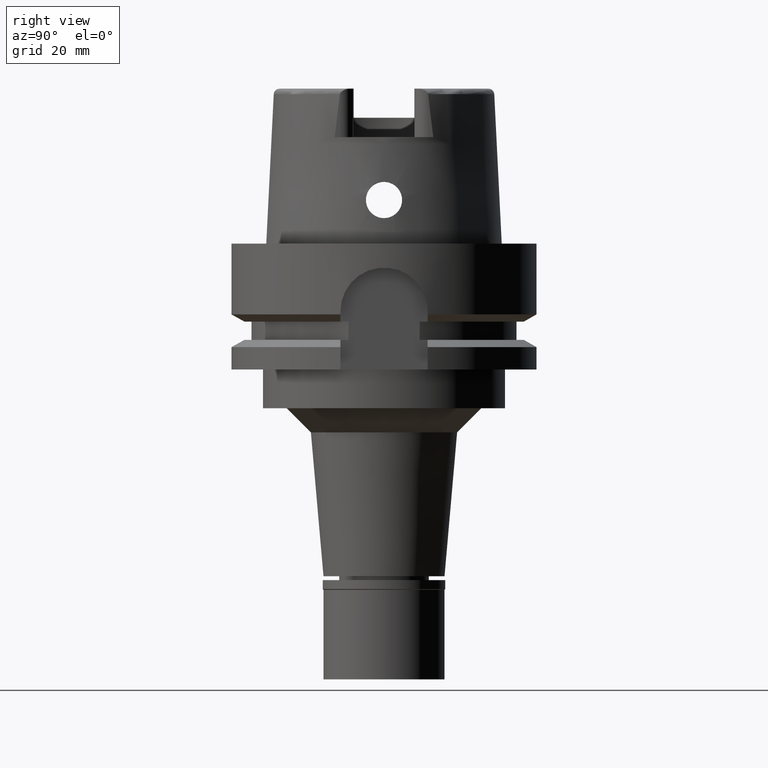
[diagram: clean part render]
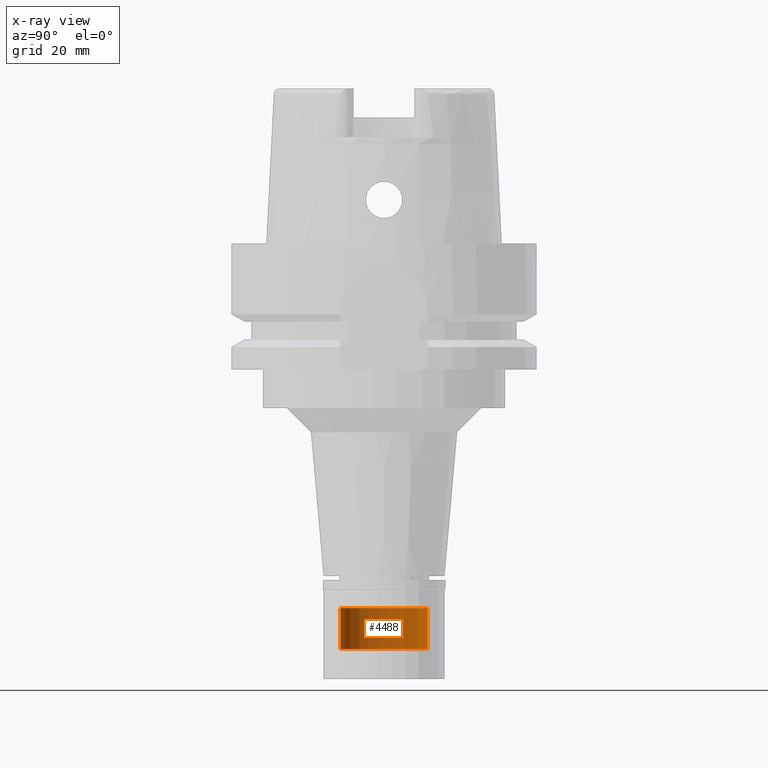
[diagram: x-ray — body ghosted, one internal face saturated and labeled with its STEP entity id]
A machine part, right view, then the same camera in x-ray: the body is ghosted and one INTERNAL B-rep face — a face not visible from any outside direction — is saturated and labeled: STEP entity #4488.
In plain terms, the highlighted cylindrical surface (partial cylindrical patch) has radius 9 mm, axis along (0, 0, 1).
Its self-contained STEP definition (entity closure, byte-faithful):
#98 = DIRECTION ( 'NONE',  ( 0.0000000000000000000, 1.000000000000000000, 0.0000000000000000000 ) ) ;
#123 = LINE ( 'NONE', #4877, #4313 ) ;
#228 = EDGE_CURVE ( 'NONE', #3716, #2120, #2345, .T. ) ;
#409 = ORIENTED_EDGE ( 'NONE', *, *, #462, .T. ) ;
#462 = EDGE_CURVE ( 'NONE', #4127, #4952, #123, .T. ) ;
#772 = DIRECTION ( 'NONE',  ( 0.0000000000000000000, 0.0000000000000000000, 1.000000000000000000 ) ) ;
#873 = AXIS2_PLACEMENT_3D ( 'NONE', #5135, #1249, #5611 ) ;
#1249 = DIRECTION ( 'NONE',  ( 0.0000000000000000000, 0.0000000000000000000, -1.000000000000000000 ) ) ;
#1337 = CARTESIAN_POINT ( 'NONE',  ( 0.0000000000000000000, 8.999999999998999911, -75.30000000000001137 ) ) ;
#1408 = CARTESIAN_POINT ( 'NONE',  ( 0.0000000000000000000, -8.999999999998999911, -75.30000000000001137 ) ) ;
#1466 = ORIENTED_EDGE ( 'NONE', *, *, #3800, .T. ) ;
#1630 = AXIS2_PLACEMENT_3D ( 'NONE', #5534, #772, #3316 ) ;
#1834 = DIRECTION ( 'NONE',  ( 0.0000000000000000000, 0.0000000000000000000, 1.000000000000000000 ) ) ;
#1955 = CARTESIAN_POINT ( 'NONE',  ( 0.0000000000000000000, -8.999999999998999911, -75.30000000000001137 ) ) ;
#2120 = VERTEX_POINT ( 'NONE', #3325 ) ;
#2198 = ORIENTED_EDGE ( 'NONE', *, *, #5054, .T. ) ;
#2345 = LINE ( 'NONE', #1955, #3649 ) ;
#2525 = FACE_OUTER_BOUND ( 'NONE', #4876, .T. ) ;
#2735 = CARTESIAN_POINT ( 'NONE',  ( 0.0000000000000000000, 8.999999999998999911, -83.79999999999999716 ) ) ;
#3087 = CIRCLE ( 'NONE', #4290, 8.999999999998999911 ) ;
#3298 = CIRCLE ( 'NONE', #873, 8.999999999998999911 ) ;
#3316 = DIRECTION ( 'NONE',  ( 0.0000000000000000000, 1.000000000000000000, 0.0000000000000000000 ) ) ;
#3325 = CARTESIAN_POINT ( 'NONE',  ( 0.0000000000000000000, -8.999999999998999911, -83.79999999999999716 ) ) ;
#3618 = DIRECTION ( 'NONE',  ( 0.0000000000000000000, 0.0000000000000000000, -1.000000000000000000 ) ) ;
#3649 = VECTOR ( 'NONE', #3618, 1000.000000000000000 ) ;
#3716 = VERTEX_POINT ( 'NONE', #1408 ) ;
#3776 = CYLINDRICAL_SURFACE ( 'NONE', #1630, 8.999999999998999911 ) ;
#3800 = EDGE_CURVE ( 'NONE', #4952, #2120, #3087, .T. ) ;
#4041 = ORIENTED_EDGE ( 'NONE', *, *, #228, .F. ) ;
#4127 = VERTEX_POINT ( 'NONE', #1337 ) ;
#4290 = AXIS2_PLACEMENT_3D ( 'NONE', #4929, #1834, #98 ) ;
#4313 = VECTOR ( 'NONE', #5324, 1000.000000000000000 ) ;
#4488 = ADVANCED_FACE ( 'NONE', ( #2525 ), #3776, .T. ) ;
#4876 = EDGE_LOOP ( 'NONE', ( #1466, #4041, #2198, #409 ) ) ;
#4877 = CARTESIAN_POINT ( 'NONE',  ( 0.0000000000000000000, 8.999999999998999911, -75.30000000000001137 ) ) ;
#4929 = CARTESIAN_POINT ( 'NONE',  ( 0.0000000000000000000, 0.0000000000000000000, -83.79999999999999716 ) ) ;
#4952 = VERTEX_POINT ( 'NONE', #2735 ) ;
#5054 = EDGE_CURVE ( 'NONE', #3716, #4127, #3298, .T. ) ;
#5135 = CARTESIAN_POINT ( 'NONE',  ( 0.0000000000000000000, 0.0000000000000000000, -75.30000000000001137 ) ) ;
#5324 = DIRECTION ( 'NONE',  ( 0.0000000000000000000, 0.0000000000000000000, -1.000000000000000000 ) ) ;
#5534 = CARTESIAN_POINT ( 'NONE',  ( 0.0000000000000000000, 0.0000000000000000000, 0.0000000000000000000 ) ) ;
#5611 = DIRECTION ( 'NONE',  ( 0.0000000000000000000, -1.000000000000000000, 0.0000000000000000000 ) ) ;